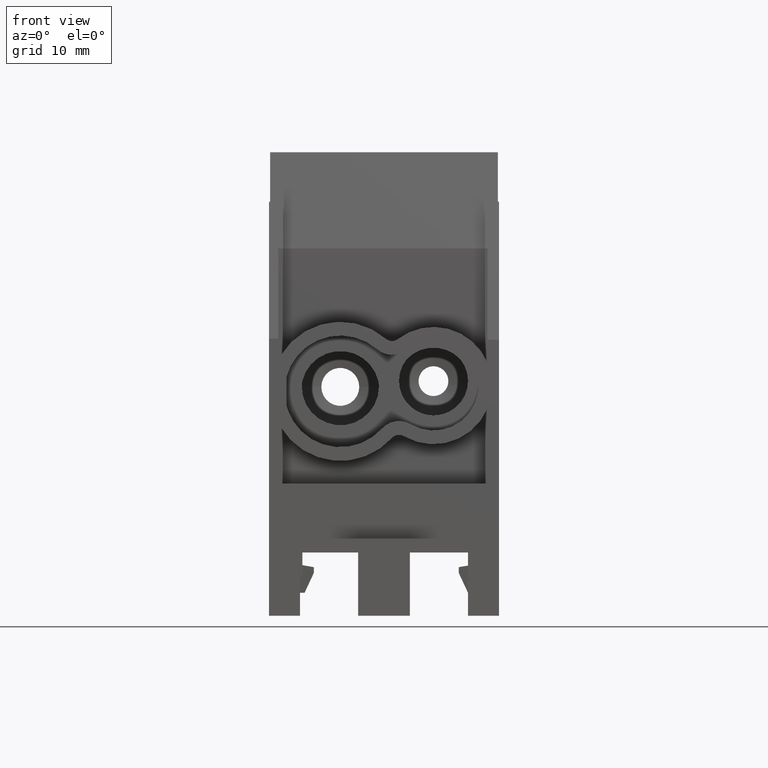
[diagram: clean part render]
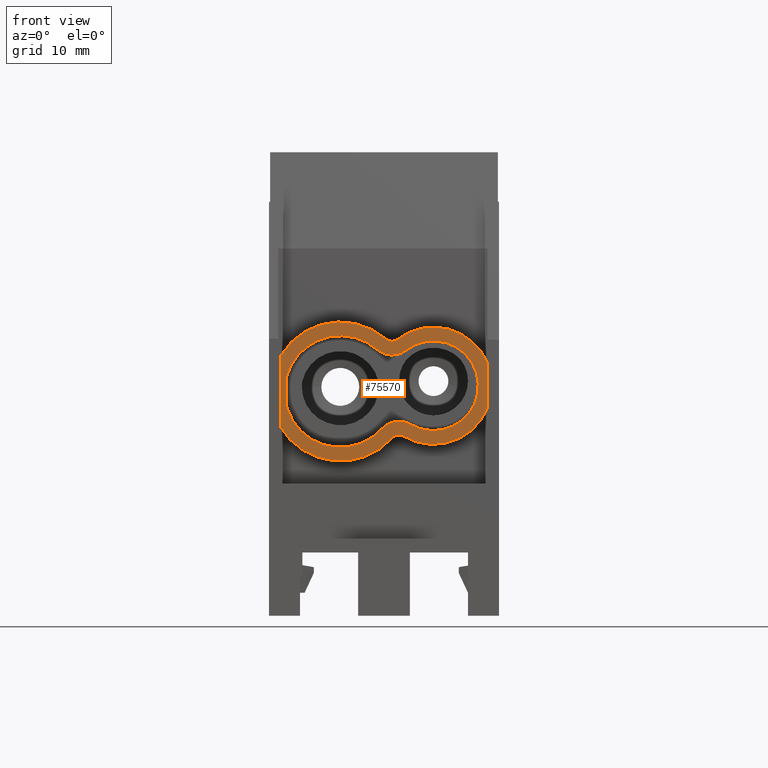
[diagram: same view with one face highlighted and labeled with its STEP entity id]
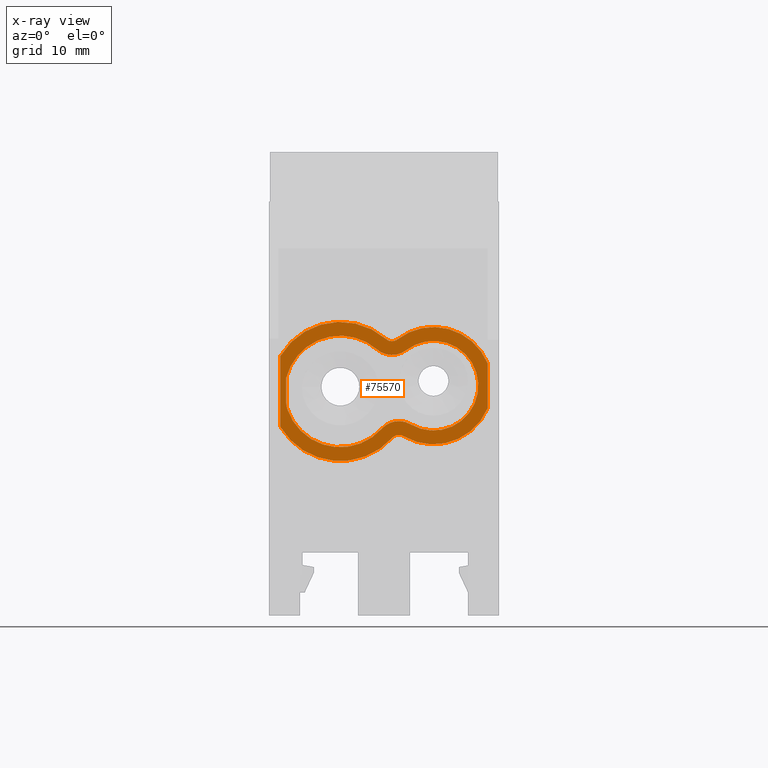
[diagram: x-ray of the same camera — body ghosted, the highlighted face saturated]
A machine part, front view. The second image highlights one B-rep face of the part: STEP entity #75570.
The next image is the same camera in x-ray: the body ghosted, the highlighted face saturated — about 0% of this face is hidden behind the body in this view.
In plain terms, the highlighted planar face has unit normal (-0, -1, -0).
Its self-contained STEP definition (entity closure, byte-faithful):
#69540=CARTESIAN_POINT('',(-0.304301750996335,-21.95,-26.3231709725647))
;
#69550=DIRECTION('',(2.77555756156289E-16,1.,5.80952514931361E-16));
#69560=DIRECTION('',(-8.88178419700124E-16,-5.80952514931361E-16,1.));
#69570=AXIS2_PLACEMENT_3D('',#69540,#69550,#69560);
#69580=CIRCLE('',#69570,0.8);
#69590=CARTESIAN_POINT('',(-0.899419794675599,-21.95,-25.7885360372234))
;
#69600=VERTEX_POINT('',#69590);
#69610=CARTESIAN_POINT('',(0.103061198291298,-21.95,-25.6346541408549));
#69620=VERTEX_POINT('',#69610);
#69630=EDGE_CURVE('',#69600,#69620,#69580,.T.);
#74060=CARTESIAN_POINT('',(2.69999999999998,-21.95,-21.245359338705));
#74070=DIRECTION('',(-2.77555756156289E-16,-1.,-5.80952514931361E-16));
#74080=DIRECTION('',(2.29663782545008E-16,5.80952514931361E-16,-1.));
#74090=AXIS2_PLACEMENT_3D('',#74060,#74070,#74080);
#74100=CIRCLE('',#74090,5.1);
#74110=CARTESIAN_POINT('',(7.39999999999998,-21.95,-23.2252583260274));
#74120=VERTEX_POINT('',#74110);
#74130=EDGE_CURVE('',#69620,#74120,#74100,.T.);
#74340=CARTESIAN_POINT('',(7.12105797736612,-21.95,-20.9896731686598));
#74350=DIRECTION('',(-2.77555756156289E-16,-1.,-5.80952514931361E-16));
#74360=DIRECTION('',(1.,-2.77555756156289E-16,5.55111512312576E-17));
#74370=AXIS2_PLACEMENT_3D('',#74340,#74350,#74360);
#74380=PLANE('',#74370);
#74390=CARTESIAN_POINT('',(-5.40000000000002,-21.95,-21.745359338705));
#74400=DIRECTION('',(-2.77555756156289E-16,-1.,-5.80952514931361E-16));
#74410=DIRECTION('',(0.656057780872538,-6.20543672441896E-16,
0.754710665193358));
#74420=AXIS2_PLACEMENT_3D('',#74390,#74400,#74410);
#74430=CIRCLE('',#74420,6.05);
#74440=CARTESIAN_POINT('',(-1.43085042572117,-21.95,-17.1793598142852));
#74450=VERTEX_POINT('',#74440);
#74460=CARTESIAN_POINT('',(-10.6,-21.95,-18.6530301194918));
#74470=VERTEX_POINT('',#74460);
#74480=EDGE_CURVE('',#74450,#74470,#74430,.T.);
#74490=ORIENTED_EDGE('',*,*,#74480,.T.);
#74500=CARTESIAN_POINT('',(-0.906004201023133,-21.95,-16.5755912821305))
;
#74510=DIRECTION('',(2.77555756156289E-16,1.,5.80952514931361E-16));
#74520=DIRECTION('',(0.611187152715782,2.90177334558537E-16,
-0.791486111283815));
#74530=AXIS2_PLACEMENT_3D('',#74500,#74510,#74520);
#74540=CIRCLE('',#74530,0.8);
#74550=CARTESIAN_POINT('',(-0.417054478850507,-21.95,-17.2087801711576))
;
#74560=VERTEX_POINT('',#74550);
#74570=EDGE_CURVE('',#74560,#74450,#74540,.T.);
#74580=ORIENTED_EDGE('',*,*,#74570,.T.);
#74590=CARTESIAN_POINT('',(2.69999999999998,-21.95,-21.245359338705));
#74600=DIRECTION('',(-2.77555756156289E-16,-1.,-5.80952514931361E-16));
#74610=DIRECTION('',(0.92156862745098,-4.81321441162652E-16,
0.388215487710261));
#74620=AXIS2_PLACEMENT_3D('',#74590,#74600,#74610);
#74630=CIRCLE('',#74620,5.1);
#74640=CARTESIAN_POINT('',(7.39999999999998,-21.95,-19.2654603513827));
#74650=VERTEX_POINT('',#74640);
#74660=EDGE_CURVE('',#74650,#74560,#74630,.T.);
#74670=ORIENTED_EDGE('',*,*,#74660,.T.);
#74680=CARTESIAN_POINT('',(7.39999999999998,-21.95,-2.44535933870501));
#74690=DIRECTION('',(-5.55111512312577E-17,-5.80952514931361E-16,1.));
#74700=VECTOR('',#74690,1.);
#74710=LINE('',#74680,#74700);
#74720=EDGE_CURVE('',#74120,#74650,#74710,.T.);
#74730=ORIENTED_EDGE('',*,*,#74720,.T.);
#74740=ORIENTED_EDGE('',*,*,#74130,.T.);
#74750=ORIENTED_EDGE('',*,*,#69630,.T.);
#74760=CARTESIAN_POINT('',(-5.40000000000002,-21.95,-21.745359338705));
#74770=DIRECTION('',(-2.77555756156289E-16,-1.,-5.80952514931361E-16));
#74780=DIRECTION('',(-0.859504132231405,5.35501879158739E-16,
-0.511128796564173));
#74790=AXIS2_PLACEMENT_3D('',#74760,#74770,#74780);
#74800=CIRCLE('',#74790,6.05);
#74810=CARTESIAN_POINT('',(-10.6,-21.95,-24.8376885579183));
#74820=VERTEX_POINT('',#74810);
#74830=EDGE_CURVE('',#74820,#69600,#74800,.T.);
#74840=ORIENTED_EDGE('',*,*,#74830,.T.);
#74850=CARTESIAN_POINT('',(-10.6,-21.95,-2.44535933870501));
#74860=DIRECTION('',(5.55111512312577E-17,5.80952514931361E-16,-1.));
#74870=VECTOR('',#74860,1.);
#74880=LINE('',#74850,#74870);
#74890=EDGE_CURVE('',#74470,#74820,#74880,.T.);
#74900=ORIENTED_EDGE('',*,*,#74890,.T.);
#74910=EDGE_LOOP('',(#74900,#74840,#74750,#74740,#74730,#74670,#74580,
#74490));
#74920=FACE_OUTER_BOUND('',#74910,.T.);
#74930=CARTESIAN_POINT('',(-5.40000000000002,-21.95,-21.745359338705));
#74940=DIRECTION('',(2.77555756156289E-16,1.,5.80952514931361E-16));
#74950=DIRECTION('',(1.47075936767353E-16,5.80952514931361E-16,-1.));
#74960=AXIS2_PLACEMENT_3D('',#74930,#74940,#74950);
#74970=CIRCLE('',#74960,4.85);
#74980=CARTESIAN_POINT('',(-1.79209686019448,-21.95,-24.9865836342115));
#74990=VERTEX_POINT('',#74980);
#75000=CARTESIAN_POINT('',(-9.99473684210528,-21.95,-23.2980645109127));
#75010=VERTEX_POINT('',#75000);
#75020=EDGE_CURVE('',#74990,#75010,#74970,.T.);
#75030=ORIENTED_EDGE('',*,*,#75020,.T.);
#75040=CARTESIAN_POINT('',(-0.304301750996334,-21.95,-26.3231709725647))
;
#75050=DIRECTION('',(-2.77555756156289E-16,-1.,-5.80952514931361E-16));
#75060=DIRECTION('',(0.509203686609546,-6.41326895467447E-16,
0.860646039637229));
#75070=AXIS2_PLACEMENT_3D('',#75040,#75050,#75060);
#75080=CIRCLE('',#75070,2.);
#75090=CARTESIAN_POINT('',(0.714105622222759,-21.95,-24.6018788932902));
#75100=VERTEX_POINT('',#75090);
#75110=EDGE_CURVE('',#75100,#74990,#75080,.T.);
#75120=ORIENTED_EDGE('',*,*,#75110,.T.);
#75130=CARTESIAN_POINT('',(2.69999999999998,-21.95,-21.245359338705));
#75140=DIRECTION('',(2.77555756156289E-16,1.,5.80952514931361E-16));
#75150=DIRECTION('',(-0.611187152715783,-2.90177334558537E-16,
0.791486111283814));
#75160=AXIS2_PLACEMENT_3D('',#75130,#75140,#75150);
#75170=CIRCLE('',#75160,3.9);
#75180=CARTESIAN_POINT('',(0.316370104408433,-21.95,-18.1585635046981));
#75190=VERTEX_POINT('',#75180);
#75200=EDGE_CURVE('',#75190,#75100,#75170,.T.);
#75210=ORIENTED_EDGE('',*,*,#75200,.T.);
#75220=CARTESIAN_POINT('',(-0.906004201023131,-21.95,-16.5755912821305))
;
#75230=DIRECTION('',(-2.77555756156289E-16,-1.,-5.80952514931361E-16));
#75240=DIRECTION('',(-0.656057780872538,6.20543672441896E-16,
-0.754710665193358));
#75250=AXIS2_PLACEMENT_3D('',#75220,#75230,#75240);
#75260=CIRCLE('',#75250,2.);
#75270=CARTESIAN_POINT('',(-2.21811976276821,-21.95,-18.0850126125172));
#75280=VERTEX_POINT('',#75270);
#75290=EDGE_CURVE('',#75280,#75190,#75260,.T.);
#75300=ORIENTED_EDGE('',*,*,#75290,.T.);
#75310=CARTESIAN_POINT('',(-5.40000000000002,-21.95,-21.745359338705));
#75320=DIRECTION('',(2.77555756156289E-16,1.,5.80952514931361E-16));
#75330=DIRECTION('',(-0.947368421052632,7.69582853213796E-17,
0.320145396331485));
#75340=AXIS2_PLACEMENT_3D('',#75310,#75320,#75330);
#75350=CIRCLE('',#75340,4.85);
#75360=CARTESIAN_POINT('',(-10.1,-21.95,-20.5484884183464));
#75370=VERTEX_POINT('',#75360);
#75380=EDGE_CURVE('',#75370,#75280,#75350,.T.);
#75390=ORIENTED_EDGE('',*,*,#75380,.T.);
#75400=CARTESIAN_POINT('',(-10.1,-21.95,-7.13140364057852E-15));
#75410=DIRECTION('',(5.55111512312577E-17,5.80952514931361E-16,-1.));
#75420=VECTOR('',#75410,1.);
#75430=LINE('',#75400,#75420);
#75440=CARTESIAN_POINT('',(-10.1,-21.95,-22.6577737182497));
#75450=VERTEX_POINT('',#75440);
#75460=EDGE_CURVE('',#75370,#75450,#75430,.T.);
#75470=ORIENTED_EDGE('',*,*,#75460,.F.);
#75480=CARTESIAN_POINT('',(-8.10000000000002,-21.95,-22.6577737182497));
#75490=DIRECTION('',(2.77555756156289E-16,1.,5.80952514931361E-16));
#75500=DIRECTION('',(-0.947368421052632,4.48936831606327E-16,
-0.320145396331485));
#75510=AXIS2_PLACEMENT_3D('',#75480,#75490,#75500);
#75520=CIRCLE('',#75510,2.);
#75530=EDGE_CURVE('',#75010,#75450,#75520,.T.);
#75540=ORIENTED_EDGE('',*,*,#75530,.T.);
#75550=EDGE_LOOP('',(#75540,#75470,#75390,#75300,#75210,#75120,#75030));
#75560=FACE_BOUND('',#75550,.T.);
#75570=ADVANCED_FACE('',(#74920,#75560),#74380,.T.);